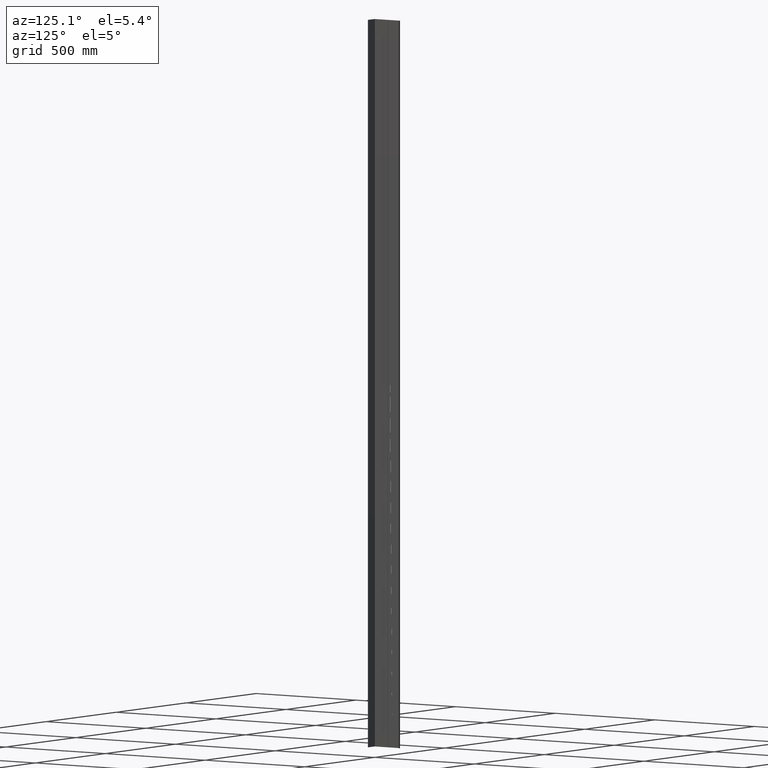
[diagram: clean part render]
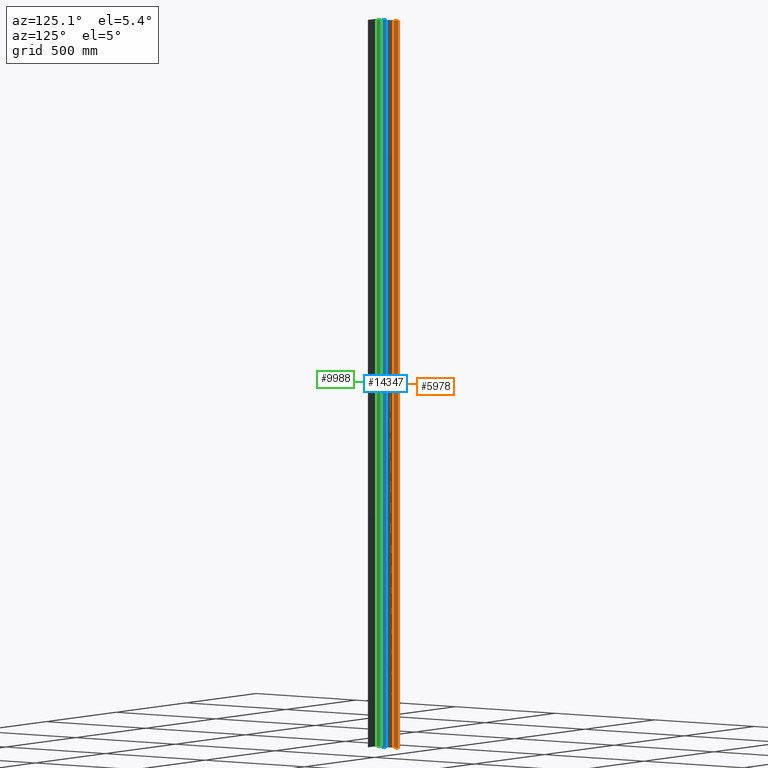
[diagram: same view with three faces highlighted in distinct colors, each labeled with its STEP entity id]
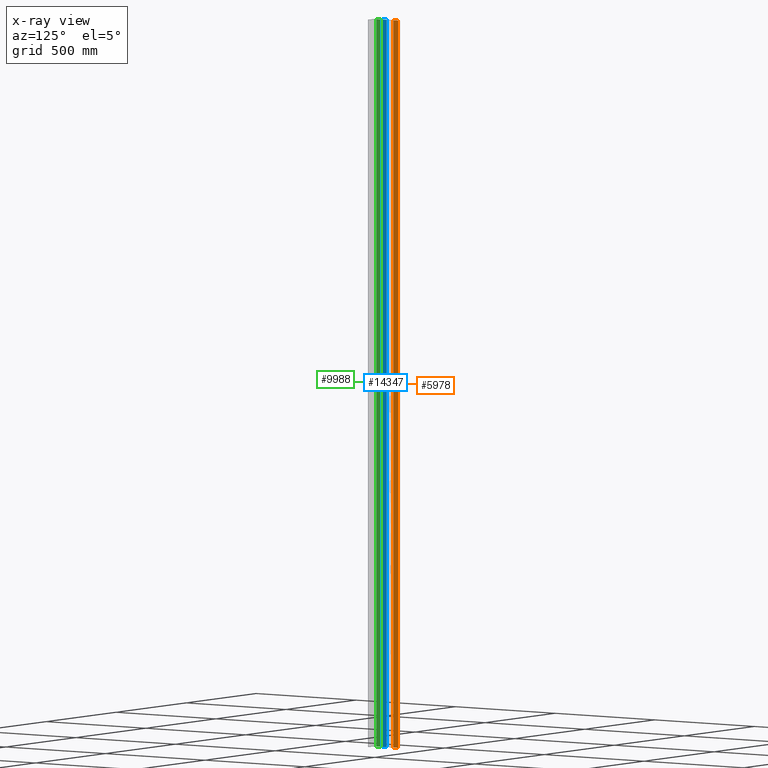
[diagram: x-ray of the same camera — body ghosted, the three highlighted faces saturated]
A machine part, auxiliary view with three faces highlighted in distinct colors.
The next image is the same camera in x-ray (body ghosted, the three faces saturated) — at least one of them is partly hidden behind the body in this view.
Their STEP definitions:

[orange] entity #5978 — the highlighted planar face has unit normal (-1, 0, 0).
#122 = PLANE ( 'NONE',  #10454 ) ;
#341 = VERTEX_POINT ( 'NONE', #11601 ) ;
#412 = CARTESIAN_POINT ( 'NONE',  ( 1.300000000000000000, 118.3000000000592300, 1500.000000000000000 ) ) ;
#781 = FACE_OUTER_BOUND ( 'NONE', #9101, .T. ) ;
#1218 = EDGE_CURVE ( 'NONE', #341, #5329, #11788, .T. ) ;
#1295 = ORIENTED_EDGE ( 'NONE', *, *, #6887, .F. ) ;
#2258 = CARTESIAN_POINT ( 'NONE',  ( 1.300000000000000000, 118.3000000000592300, 1500.000000000000000 ) ) ;
#3351 = DIRECTION ( 'NONE',  ( -0.0000000000000000000, -0.0000000000000000000, -1.000000000000000000 ) ) ;
#4873 = DIRECTION ( 'NONE',  ( 0.0000000000000000000, 1.000000000000000000, 0.0000000000000000000 ) ) ;
#5329 = VERTEX_POINT ( 'NONE', #14902 ) ;
#5526 = LINE ( 'NONE', #6130, #8685 ) ;
#5687 = ORIENTED_EDGE ( 'NONE', *, *, #12968, .T. ) ;
#5850 = VECTOR ( 'NONE', #7425, 1000.000000000000000 ) ;
#5978 = ADVANCED_FACE ( 'NONE', ( #781 ), #122, .F. ) ;
#6130 = CARTESIAN_POINT ( 'NONE',  ( 1.300000000000000000, 94.80000000005924200, 1500.000000000000000 ) ) ;
#6180 = LINE ( 'NONE', #8035, #13493 ) ;
#6426 = CARTESIAN_POINT ( 'NONE',  ( 1.300000000000000000, 118.3000000000592300, -1500.000000000000000 ) ) ;
#6680 = VERTEX_POINT ( 'NONE', #412 ) ;
#6887 = EDGE_CURVE ( 'NONE', #6680, #13680, #14476, .T. ) ;
#7032 = EDGE_CURVE ( 'NONE', #341, #6680, #5526, .T. ) ;
#7425 = DIRECTION ( 'NONE',  ( -0.0000000000000000000, -0.0000000000000000000, -1.000000000000000000 ) ) ;
#8035 = CARTESIAN_POINT ( 'NONE',  ( 1.300000000000000000, 94.80000000005924200, -1500.000000000000000 ) ) ;
#8673 = CARTESIAN_POINT ( 'NONE',  ( 1.300000000000000000, 94.80000000005924200, 1500.000000000000000 ) ) ;
#8685 = VECTOR ( 'NONE', #4873, 1000.000000000000000 ) ;
#9101 = EDGE_LOOP ( 'NONE', ( #5687, #1295, #11430, #14951 ) ) ;
#10008 = VECTOR ( 'NONE', #3351, 1000.000000000000000 ) ;
#10313 = DIRECTION ( 'NONE',  ( 0.0000000000000000000, 1.000000000000000000, 0.0000000000000000000 ) ) ;
#10454 = AXIS2_PLACEMENT_3D ( 'NONE', #15353, #14340, #13031 ) ;
#11430 = ORIENTED_EDGE ( 'NONE', *, *, #7032, .F. ) ;
#11601 = CARTESIAN_POINT ( 'NONE',  ( 1.300000000000000000, 94.80000000005924200, 1500.000000000000000 ) ) ;
#11788 = LINE ( 'NONE', #8673, #5850 ) ;
#12968 = EDGE_CURVE ( 'NONE', #5329, #13680, #6180, .T. ) ;
#13031 = DIRECTION ( 'NONE',  ( 0.0000000000000000000, 0.0000000000000000000, 1.000000000000000000 ) ) ;
#13493 = VECTOR ( 'NONE', #10313, 1000.000000000000000 ) ;
#13680 = VERTEX_POINT ( 'NONE', #6426 ) ;
#14340 = DIRECTION ( 'NONE',  ( -1.000000000000000000, 0.0000000000000000000, 0.0000000000000000000 ) ) ;
#14476 = LINE ( 'NONE', #2258, #10008 ) ;
#14902 = CARTESIAN_POINT ( 'NONE',  ( 1.300000000000000000, 94.80000000005924200, -1500.000000000000000 ) ) ;
#14951 = ORIENTED_EDGE ( 'NONE', *, *, #1218, .T. ) ;
#15353 = CARTESIAN_POINT ( 'NONE',  ( 1.300000000000000000, 94.80000000005924200, 1500.000000000000000 ) ) ;

[blue] entity #14347 — the highlighted planar face has unit normal (-1, 0, 0).
#1424 = CARTESIAN_POINT ( 'NONE',  ( 1.300000000000000000, 61.29999999999665800, -1500.000000000000000 ) ) ;
#2029 = AXIS2_PLACEMENT_3D ( 'NONE', #11144, #10924, #5232 ) ;
#2163 = VERTEX_POINT ( 'NONE', #11740 ) ;
#2285 = EDGE_CURVE ( 'NONE', #8416, #3652, #4892, .T. ) ;
#2805 = LINE ( 'NONE', #11005, #12215 ) ;
#2982 = LINE ( 'NONE', #5992, #4972 ) ;
#3174 = ORIENTED_EDGE ( 'NONE', *, *, #7801, .T. ) ;
#3356 = FACE_OUTER_BOUND ( 'NONE', #6585, .T. ) ;
#3652 = VERTEX_POINT ( 'NONE', #1424 ) ;
#3957 = DIRECTION ( 'NONE',  ( -0.0000000000000000000, -0.0000000000000000000, -1.000000000000000000 ) ) ;
#4553 = VECTOR ( 'NONE', #10635, 1000.000000000000000 ) ;
#4892 = LINE ( 'NONE', #13759, #13988 ) ;
#4972 = VECTOR ( 'NONE', #9434, 1000.000000000000000 ) ;
#5232 = DIRECTION ( 'NONE',  ( 0.0000000000000000000, 0.0000000000000000000, 1.000000000000000000 ) ) ;
#5992 = CARTESIAN_POINT ( 'NONE',  ( 1.300000000000000000, 37.79999999999665800, 1500.000000000000000 ) ) ;
#6585 = EDGE_LOOP ( 'NONE', ( #13945, #10720, #8991, #3174 ) ) ;
#7499 = PLANE ( 'NONE',  #2029 ) ;
#7649 = VERTEX_POINT ( 'NONE', #12896 ) ;
#7801 = EDGE_CURVE ( 'NONE', #2163, #8416, #2805, .T. ) ;
#8416 = VERTEX_POINT ( 'NONE', #14032 ) ;
#8991 = ORIENTED_EDGE ( 'NONE', *, *, #15097, .F. ) ;
#9402 = CARTESIAN_POINT ( 'NONE',  ( 1.300000000000000000, 61.29999999999665800, 1500.000000000000000 ) ) ;
#9434 = DIRECTION ( 'NONE',  ( 0.0000000000000000000, 1.000000000000000000, 0.0000000000000000000 ) ) ;
#10635 = DIRECTION ( 'NONE',  ( -0.0000000000000000000, -0.0000000000000000000, -1.000000000000000000 ) ) ;
#10720 = ORIENTED_EDGE ( 'NONE', *, *, #12502, .F. ) ;
#10924 = DIRECTION ( 'NONE',  ( -1.000000000000000000, 0.0000000000000000000, 0.0000000000000000000 ) ) ;
#11005 = CARTESIAN_POINT ( 'NONE',  ( 1.300000000000000000, 37.79999999999665800, 1500.000000000000000 ) ) ;
#11144 = CARTESIAN_POINT ( 'NONE',  ( 1.300000000000000000, 37.79999999999665800, 1500.000000000000000 ) ) ;
#11740 = CARTESIAN_POINT ( 'NONE',  ( 1.300000000000000000, 37.79999999999665800, 1500.000000000000000 ) ) ;
#12215 = VECTOR ( 'NONE', #3957, 1000.000000000000000 ) ;
#12502 = EDGE_CURVE ( 'NONE', #7649, #3652, #13848, .T. ) ;
#12896 = CARTESIAN_POINT ( 'NONE',  ( 1.300000000000000000, 61.29999999999665800, 1500.000000000000000 ) ) ;
#13759 = CARTESIAN_POINT ( 'NONE',  ( 1.300000000000000000, 37.79999999999665800, -1500.000000000000000 ) ) ;
#13848 = LINE ( 'NONE', #9402, #4553 ) ;
#13902 = DIRECTION ( 'NONE',  ( 0.0000000000000000000, 1.000000000000000000, 0.0000000000000000000 ) ) ;
#13945 = ORIENTED_EDGE ( 'NONE', *, *, #2285, .T. ) ;
#13988 = VECTOR ( 'NONE', #13902, 1000.000000000000000 ) ;
#14032 = CARTESIAN_POINT ( 'NONE',  ( 1.300000000000000000, 37.79999999999665800, -1500.000000000000000 ) ) ;
#14347 = ADVANCED_FACE ( 'NONE', ( #3356 ), #7499, .F. ) ;
#15097 = EDGE_CURVE ( 'NONE', #2163, #7649, #2982, .T. ) ;

[green] entity #9988 — the highlighted planar face has unit normal (-1, 0, 0).
#83 = CARTESIAN_POINT ( 'NONE',  ( 1.300000000000000000, 9.299999999965367100, 1500.000000000000000 ) ) ;
#1045 = CARTESIAN_POINT ( 'NONE',  ( 1.300000000000000000, 9.299999999965367100, -1500.000000000000000 ) ) ;
#1108 = VERTEX_POINT ( 'NONE', #12893 ) ;
#1306 = DIRECTION ( 'NONE',  ( -0.0000000000000000000, -0.0000000000000000000, -1.000000000000000000 ) ) ;
#1493 = VECTOR ( 'NONE', #13131, 1000.000000000000000 ) ;
#2200 = CARTESIAN_POINT ( 'NONE',  ( 1.300000000000000000, 9.299999999965367100, 1500.000000000000000 ) ) ;
#3060 = VECTOR ( 'NONE', #4277, 1000.000000000000000 ) ;
#3578 = EDGE_CURVE ( 'NONE', #15246, #1108, #4333, .T. ) ;
#3586 = AXIS2_PLACEMENT_3D ( 'NONE', #2200, #15285, #14382 ) ;
#4029 = DIRECTION ( 'NONE',  ( 0.0000000000000000000, 1.000000000000000000, 0.0000000000000000000 ) ) ;
#4277 = DIRECTION ( 'NONE',  ( 0.0000000000000000000, 1.000000000000000000, 0.0000000000000000000 ) ) ;
#4280 = LINE ( 'NONE', #6247, #10910 ) ;
#4333 = LINE ( 'NONE', #14859, #3060 ) ;
#4714 = ORIENTED_EDGE ( 'NONE', *, *, #14266, .T. ) ;
#5527 = CARTESIAN_POINT ( 'NONE',  ( 1.300000000000000000, 32.79999999996536500, -1500.000000000000000 ) ) ;
#6230 = FACE_OUTER_BOUND ( 'NONE', #13325, .T. ) ;
#6247 = CARTESIAN_POINT ( 'NONE',  ( 1.300000000000000000, 9.299999999965367100, -1500.000000000000000 ) ) ;
#6972 = PLANE ( 'NONE',  #3586 ) ;
#7038 = CARTESIAN_POINT ( 'NONE',  ( 1.300000000000000000, 32.79999999996536500, 1500.000000000000000 ) ) ;
#7193 = CARTESIAN_POINT ( 'NONE',  ( 1.300000000000000000, 9.299999999965367100, 1500.000000000000000 ) ) ;
#7367 = LINE ( 'NONE', #7038, #1493 ) ;
#7569 = ORIENTED_EDGE ( 'NONE', *, *, #3578, .F. ) ;
#7727 = VECTOR ( 'NONE', #1306, 1000.000000000000000 ) ;
#7920 = EDGE_CURVE ( 'NONE', #15246, #9954, #12209, .T. ) ;
#9580 = VERTEX_POINT ( 'NONE', #5527 ) ;
#9954 = VERTEX_POINT ( 'NONE', #1045 ) ;
#9988 = ADVANCED_FACE ( 'NONE', ( #6230 ), #6972, .F. ) ;
#10910 = VECTOR ( 'NONE', #4029, 1000.000000000000000 ) ;
#12209 = LINE ( 'NONE', #83, #7727 ) ;
#12885 = ORIENTED_EDGE ( 'NONE', *, *, #15102, .F. ) ;
#12893 = CARTESIAN_POINT ( 'NONE',  ( 1.300000000000000000, 32.79999999996536500, 1500.000000000000000 ) ) ;
#13131 = DIRECTION ( 'NONE',  ( -0.0000000000000000000, -0.0000000000000000000, -1.000000000000000000 ) ) ;
#13325 = EDGE_LOOP ( 'NONE', ( #4714, #12885, #7569, #15288 ) ) ;
#14266 = EDGE_CURVE ( 'NONE', #9954, #9580, #4280, .T. ) ;
#14382 = DIRECTION ( 'NONE',  ( 0.0000000000000000000, 0.0000000000000000000, 1.000000000000000000 ) ) ;
#14859 = CARTESIAN_POINT ( 'NONE',  ( 1.300000000000000000, 9.299999999965367100, 1500.000000000000000 ) ) ;
#15102 = EDGE_CURVE ( 'NONE', #1108, #9580, #7367, .T. ) ;
#15246 = VERTEX_POINT ( 'NONE', #7193 ) ;
#15285 = DIRECTION ( 'NONE',  ( -1.000000000000000000, 0.0000000000000000000, 0.0000000000000000000 ) ) ;
#15288 = ORIENTED_EDGE ( 'NONE', *, *, #7920, .T. ) ;